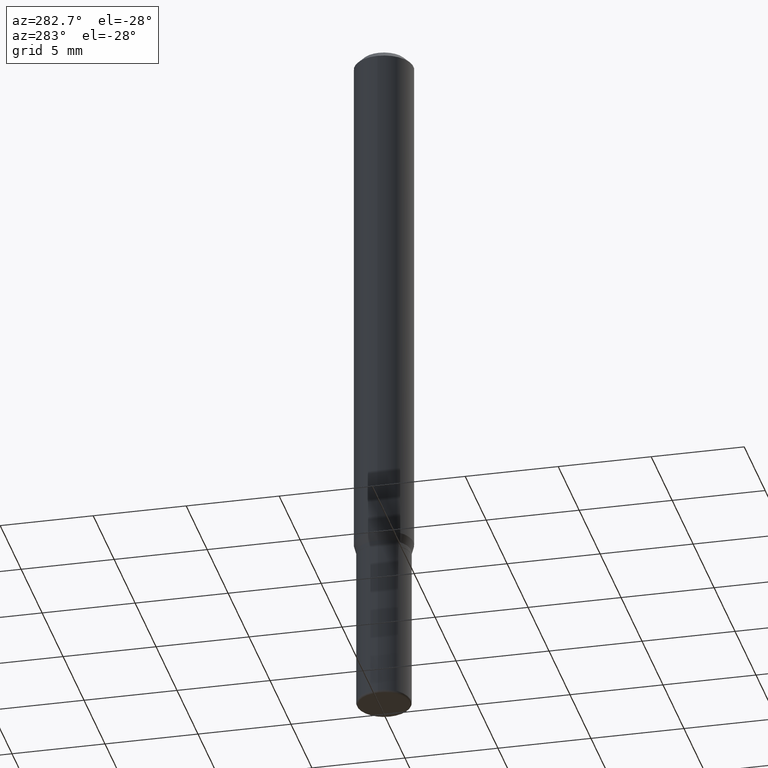
[diagram: clean part render]
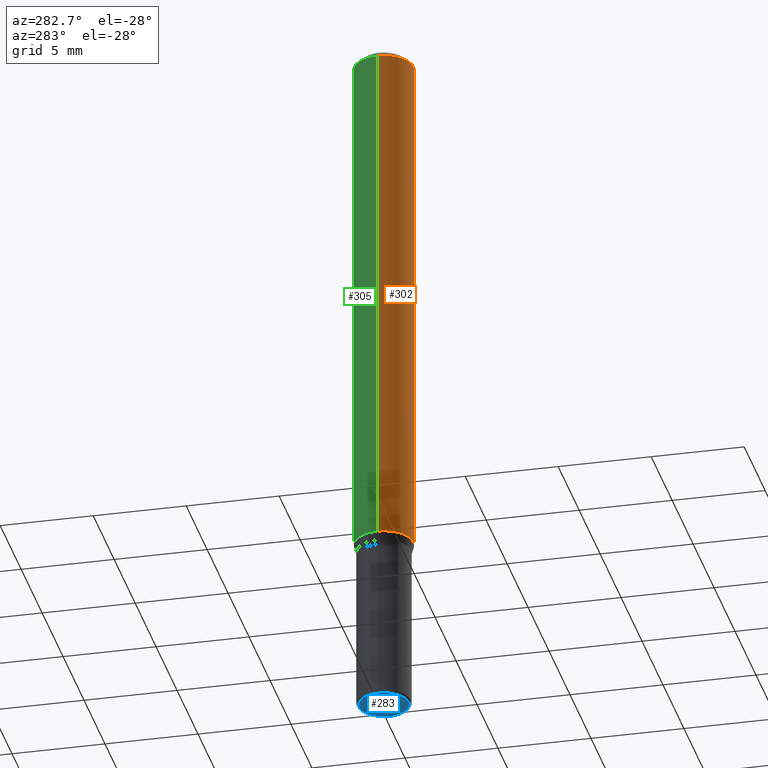
[diagram: same view with three faces highlighted in distinct colors, each labeled with its STEP entity id]
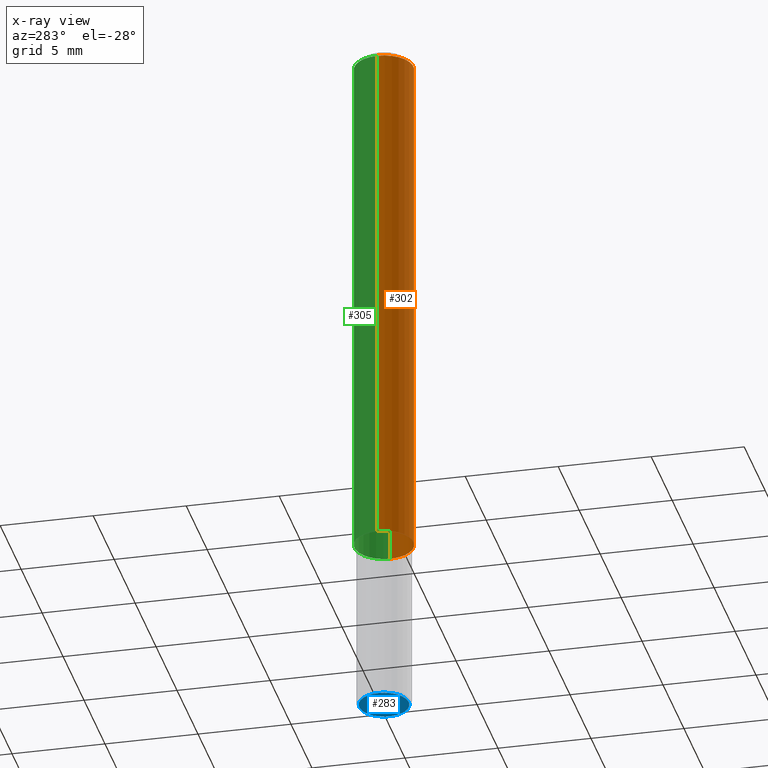
[diagram: x-ray of the same camera — body ghosted, the three highlighted faces saturated]
A machine part, auxiliary view with three faces highlighted in distinct colors.
The next image is the same camera in x-ray (body ghosted, the three faces saturated) — at least one of them is partly hidden behind the body in this view.
Their STEP definitions:

[orange] entity #302 — the highlighted cylindrical surface (edge-blend (fillet) strip) has radius 1.5875 mm, axis along (-0, 0, 1).
#2 = ORIENTED_EDGE ( 'NONE', *, *, #463, .F. ) ;
#4 = CARTESIAN_POINT ( 'NONE',  ( 0.06250000000000000000, -4.888073874380378612E-16, -0.01499999999999970281 ) ) ;
#19 = CARTESIAN_POINT ( 'NONE',  ( 3.668203209277632395E-31, -5.237222008264614861E-17, -0.01499999999999970281 ) ) ;
#47 = CARTESIAN_POINT ( 'NONE',  ( -0.06250000000000000000, -1.548394002303359430E-15, -0.01499999999999970281 ) ) ;
#87 = AXIS2_PLACEMENT_3D ( 'NONE', #19, #257, #346 ) ;
#92 = CARTESIAN_POINT ( 'NONE',  ( 0.06250000000000000000, -4.369029371579589866E-15, -1.126339745962156247 ) ) ;
#107 = VECTOR ( 'NONE', #291, 39.37007874015748143 ) ;
#113 = LINE ( 'NONE', #203, #266 ) ;
#147 = EDGE_CURVE ( 'NONE', #502, #275, #239, .T. ) ;
#203 = CARTESIAN_POINT ( 'NONE',  ( 0.06250000000000000000, -4.364351673553916694E-16, 3.047610484872459871E-30 ) ) ;
#206 = DIRECTION ( 'NONE',  ( -2.445468806185136597E-29, 3.491481338843145583E-15, 1.000000000000000000 ) ) ;
#225 = EDGE_CURVE ( 'NONE', #275, #362, #113, .T. ) ;
#238 = DIRECTION ( 'NONE',  ( -2.445468806185136597E-29, 3.491481338843145583E-15, 1.000000000000000000 ) ) ;
#239 = CIRCLE ( 'NONE', #339, 0.06250000000000000000 ) ;
#255 = ORIENTED_EDGE ( 'NONE', *, *, #225, .T. ) ;
#257 = DIRECTION ( 'NONE',  ( -2.445468806185136597E-29, 3.491481338843145583E-15, 1.000000000000000000 ) ) ;
#265 = CARTESIAN_POINT ( 'NONE',  ( -0.06250000000000000000, -3.488504994374134792E-15, -1.126339745962156247 ) ) ;
#266 = VECTOR ( 'NONE', #273, 39.37007874015748143 ) ;
#273 = DIRECTION ( 'NONE',  ( -2.445468806185136877E-29, 3.491481338843145188E-15, 1.000000000000000000 ) ) ;
#275 = VERTEX_POINT ( 'NONE', #92 ) ;
#285 = DIRECTION ( 'NONE',  ( 1.000000000000000000, -6.982962677686266711E-15, 4.876176775795935793E-29 ) ) ;
#291 = DIRECTION ( 'NONE',  ( -2.445468806185136877E-29, 3.491481338843145188E-15, 1.000000000000000000 ) ) ;
#302 = ADVANCED_FACE ( 'NONE', ( #483 ), #410, .T. ) ;
#313 = CARTESIAN_POINT ( 'NONE',  ( 2.754428713916944301E-29, -3.932594204224198197E-15, -1.126339745962156247 ) ) ;
#317 = DIRECTION ( 'NONE',  ( 1.000000000000000000, -6.982962677686262766E-15, 0.000000000000000000 ) ) ;
#333 = ORIENTED_EDGE ( 'NONE', *, *, #390, .F. ) ;
#339 = AXIS2_PLACEMENT_3D ( 'NONE', #313, #238, #317 ) ;
#346 = DIRECTION ( 'NONE',  ( 1.000000000000000000, -6.982962677686266711E-15, 0.000000000000000000 ) ) ;
#361 = AXIS2_PLACEMENT_3D ( 'NONE', #451, #206, #285 ) ;
#362 = VERTEX_POINT ( 'NONE', #4 ) ;
#378 = CIRCLE ( 'NONE', #87, 0.06250000000000000000 ) ;
#390 = EDGE_CURVE ( 'NONE', #502, #414, #485, .T. ) ;
#400 = EDGE_LOOP ( 'NONE', ( #333, #430, #255, #2 ) ) ;
#410 = CYLINDRICAL_SURFACE ( 'NONE', #361, 0.06250000000000000000 ) ;
#414 = VERTEX_POINT ( 'NONE', #47 ) ;
#430 = ORIENTED_EDGE ( 'NONE', *, *, #147, .T. ) ;
#451 = CARTESIAN_POINT ( 'NONE',  ( 0.000000000000000000, 0.000000000000000000, 0.000000000000000000 ) ) ;
#463 = EDGE_CURVE ( 'NONE', #414, #362, #378, .T. ) ;
#483 = FACE_OUTER_BOUND ( 'NONE', #400, .T. ) ;
#485 = LINE ( 'NONE', #488, #107 ) ;
#488 = CARTESIAN_POINT ( 'NONE',  ( -0.06250000000000000000, 4.440892098500626162E-16, -3.074334431409316114E-30 ) ) ;
#502 = VERTEX_POINT ( 'NONE', #265 ) ;

[blue] entity #283 — the highlighted planar face has unit normal (-0, 0, 1).
#13 = AXIS2_PLACEMENT_3D ( 'NONE', #373, #42, #365 ) ;
#21 = CARTESIAN_POINT ( 'NONE',  ( 0.05250000000000000500, -5.603827548843248915E-15, -1.500000000000000444 ) ) ;
#42 = DIRECTION ( 'NONE',  ( -2.438088387897960049E-29, 3.491481338843145188E-15, 1.000000000000000000 ) ) ;
#59 = DIRECTION ( 'NONE',  ( 1.000000000000000000, -6.982962677686267499E-15, 0.000000000000000000 ) ) ;
#61 = CARTESIAN_POINT ( 'NONE',  ( 3.668203209277706016E-29, -5.237222008264719754E-15, -1.500000000000000444 ) ) ;
#125 = DIRECTION ( 'NONE',  ( 1.000000000000000000, -6.982962677686267499E-15, 0.000000000000000000 ) ) ;
#130 = FACE_OUTER_BOUND ( 'NONE', #310, .T. ) ;
#140 = ORIENTED_EDGE ( 'NONE', *, *, #307, .F. ) ;
#149 = VERTEX_POINT ( 'NONE', #437 ) ;
#161 = ORIENTED_EDGE ( 'NONE', *, *, #501, .F. ) ;
#165 = PLANE ( 'NONE',  #13 ) ;
#168 = DIRECTION ( 'NONE',  ( -2.445468806185136597E-29, 3.491481338843145583E-15, 1.000000000000000000 ) ) ;
#184 = CIRCLE ( 'NONE', #349, 0.05250000000000000500 ) ;
#223 = DIRECTION ( 'NONE',  ( -2.445468806185136597E-29, 3.491481338843145583E-15, 1.000000000000000000 ) ) ;
#283 = ADVANCED_FACE ( 'NONE', ( #130 ), #165, .F. ) ;
#307 = EDGE_CURVE ( 'NONE', #149, #440, #426, .T. ) ;
#310 = EDGE_LOOP ( 'NONE', ( #161, #140 ) ) ;
#334 = CARTESIAN_POINT ( 'NONE',  ( 3.668203209277706016E-29, -5.237222008264719754E-15, -1.500000000000000444 ) ) ;
#349 = AXIS2_PLACEMENT_3D ( 'NONE', #61, #223, #59 ) ;
#365 = DIRECTION ( 'NONE',  ( 1.000000000000000000, -6.982962677686265922E-15, 4.876176775795935793E-29 ) ) ;
#373 = CARTESIAN_POINT ( 'NONE',  ( 3.582686580359767159E-29, -5.359686688179454114E-15, -1.500000000000000444 ) ) ;
#386 = AXIS2_PLACEMENT_3D ( 'NONE', #334, #168, #125 ) ;
#426 = CIRCLE ( 'NONE', #386, 0.05250000000000000500 ) ;
#437 = CARTESIAN_POINT ( 'NONE',  ( -0.05250000000000000500, -4.837694800249555210E-15, -1.500000000000000444 ) ) ;
#440 = VERTEX_POINT ( 'NONE', #21 ) ;
#501 = EDGE_CURVE ( 'NONE', #440, #149, #184, .T. ) ;

[green] entity #305 — the highlighted cylindrical surface (edge-blend (fillet) strip) has radius 1.5875 mm, axis along (-0, 0, 1).
#4 = CARTESIAN_POINT ( 'NONE',  ( 0.06250000000000000000, -4.888073874380378612E-16, -0.01499999999999970281 ) ) ;
#9 = EDGE_LOOP ( 'NONE', ( #447, #286, #411, #105 ) ) ;
#30 = DIRECTION ( 'NONE',  ( 1.000000000000000000, -6.982962677686262766E-15, 0.000000000000000000 ) ) ;
#47 = CARTESIAN_POINT ( 'NONE',  ( -0.06250000000000000000, -1.548394002303359430E-15, -0.01499999999999970281 ) ) ;
#82 = DIRECTION ( 'NONE',  ( -2.445468806185136597E-29, 3.491481338843145583E-15, 1.000000000000000000 ) ) ;
#92 = CARTESIAN_POINT ( 'NONE',  ( 0.06250000000000000000, -4.369029371579589866E-15, -1.126339745962156247 ) ) ;
#105 = ORIENTED_EDGE ( 'NONE', *, *, #225, .F. ) ;
#107 = VECTOR ( 'NONE', #291, 39.37007874015748143 ) ;
#113 = LINE ( 'NONE', #203, #266 ) ;
#190 = CARTESIAN_POINT ( 'NONE',  ( 2.754428713916944301E-29, -3.932594204224198197E-15, -1.126339745962156247 ) ) ;
#201 = AXIS2_PLACEMENT_3D ( 'NONE', #190, #439, #30 ) ;
#203 = CARTESIAN_POINT ( 'NONE',  ( 0.06250000000000000000, -4.364351673553916694E-16, 3.047610484872459871E-30 ) ) ;
#204 = EDGE_CURVE ( 'NONE', #275, #502, #224, .T. ) ;
#224 = CIRCLE ( 'NONE', #201, 0.06250000000000000000 ) ;
#225 = EDGE_CURVE ( 'NONE', #275, #362, #113, .T. ) ;
#245 = DIRECTION ( 'NONE',  ( 1.000000000000000000, -6.982962677686266711E-15, 0.000000000000000000 ) ) ;
#253 = DIRECTION ( 'NONE',  ( 1.000000000000000000, -6.982962677686266711E-15, 4.876176775795935793E-29 ) ) ;
#264 = CIRCLE ( 'NONE', #335, 0.06250000000000000000 ) ;
#265 = CARTESIAN_POINT ( 'NONE',  ( -0.06250000000000000000, -3.488504994374134792E-15, -1.126339745962156247 ) ) ;
#266 = VECTOR ( 'NONE', #273, 39.37007874015748143 ) ;
#273 = DIRECTION ( 'NONE',  ( -2.445468806185136877E-29, 3.491481338843145188E-15, 1.000000000000000000 ) ) ;
#275 = VERTEX_POINT ( 'NONE', #92 ) ;
#286 = ORIENTED_EDGE ( 'NONE', *, *, #390, .T. ) ;
#291 = DIRECTION ( 'NONE',  ( -2.445468806185136877E-29, 3.491481338843145188E-15, 1.000000000000000000 ) ) ;
#292 = AXIS2_PLACEMENT_3D ( 'NONE', #492, #82, #253 ) ;
#296 = DIRECTION ( 'NONE',  ( -2.445468806185136597E-29, 3.491481338843145583E-15, 1.000000000000000000 ) ) ;
#298 = CARTESIAN_POINT ( 'NONE',  ( 3.668203209277632395E-31, -5.237222008264614861E-17, -0.01499999999999970281 ) ) ;
#305 = ADVANCED_FACE ( 'NONE', ( #340 ), #370, .T. ) ;
#335 = AXIS2_PLACEMENT_3D ( 'NONE', #298, #296, #245 ) ;
#340 = FACE_OUTER_BOUND ( 'NONE', #9, .T. ) ;
#362 = VERTEX_POINT ( 'NONE', #4 ) ;
#370 = CYLINDRICAL_SURFACE ( 'NONE', #292, 0.06250000000000000000 ) ;
#379 = EDGE_CURVE ( 'NONE', #362, #414, #264, .T. ) ;
#390 = EDGE_CURVE ( 'NONE', #502, #414, #485, .T. ) ;
#411 = ORIENTED_EDGE ( 'NONE', *, *, #379, .F. ) ;
#414 = VERTEX_POINT ( 'NONE', #47 ) ;
#439 = DIRECTION ( 'NONE',  ( -2.445468806185136597E-29, 3.491481338843145583E-15, 1.000000000000000000 ) ) ;
#447 = ORIENTED_EDGE ( 'NONE', *, *, #204, .T. ) ;
#485 = LINE ( 'NONE', #488, #107 ) ;
#488 = CARTESIAN_POINT ( 'NONE',  ( -0.06250000000000000000, 4.440892098500626162E-16, -3.074334431409316114E-30 ) ) ;
#492 = CARTESIAN_POINT ( 'NONE',  ( 0.000000000000000000, 0.000000000000000000, 0.000000000000000000 ) ) ;
#502 = VERTEX_POINT ( 'NONE', #265 ) ;